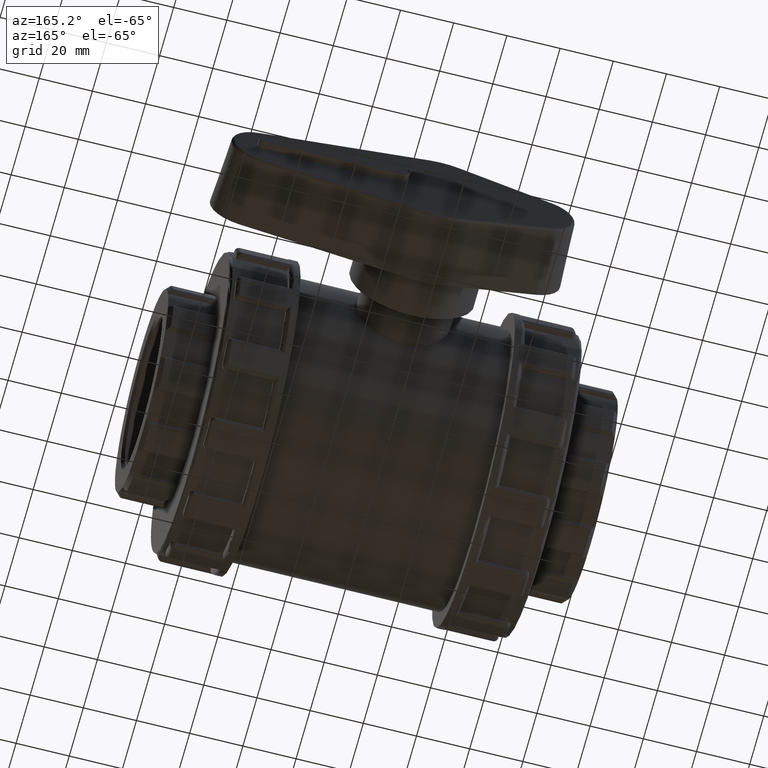
[diagram: clean part render]
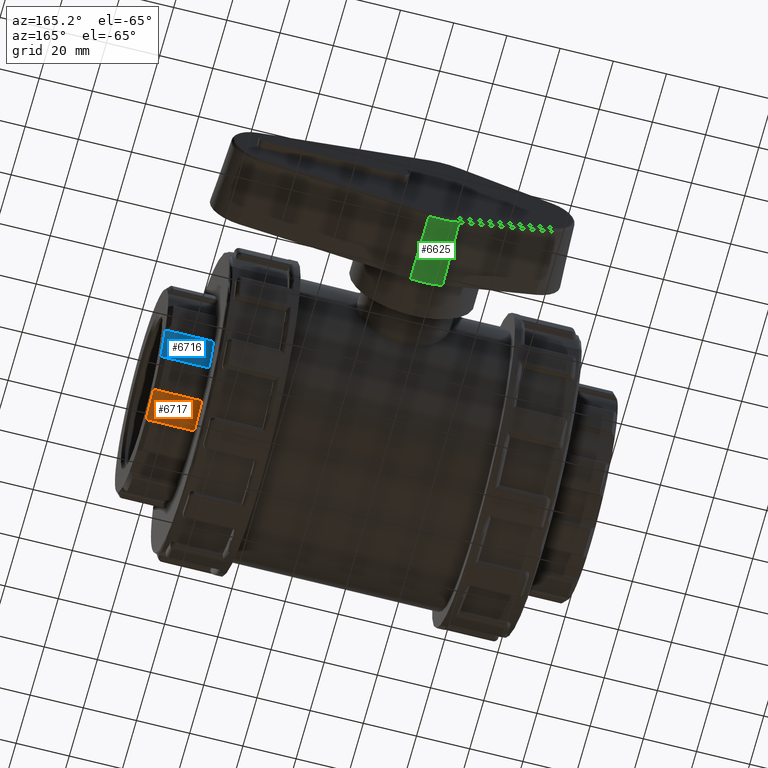
[diagram: same view with three faces highlighted in distinct colors, each labeled with its STEP entity id]
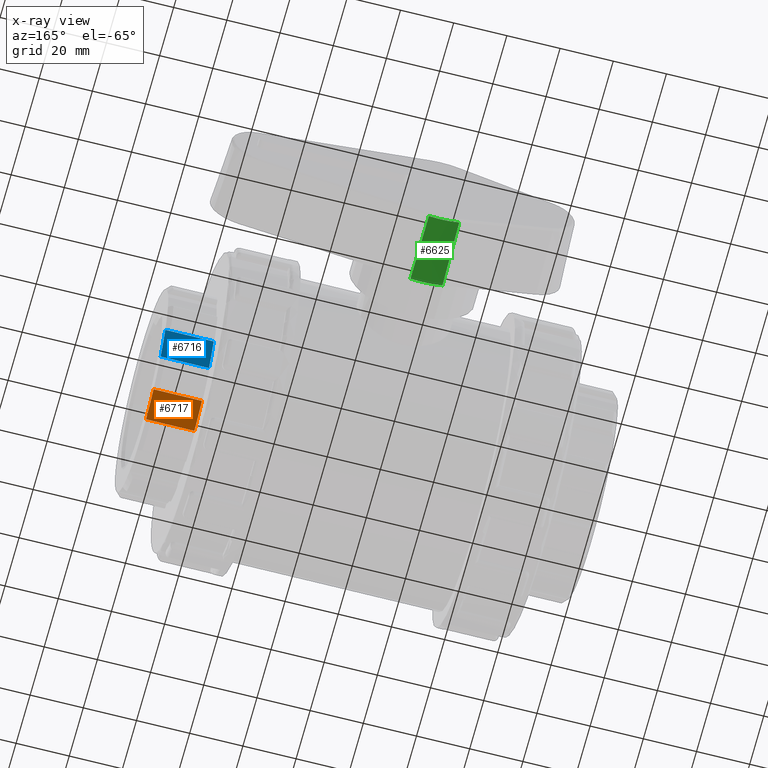
[diagram: x-ray of the same camera — body ghosted, the three highlighted faces saturated]
A machine part, auxiliary view with three faces highlighted in distinct colors.
The next image is the same camera in x-ray (body ghosted, the three faces saturated) — at least one of them is partly hidden behind the body in this view.
Their STEP definitions:

[orange] entity #6717 — the highlighted cylindrical surface (partial cylindrical patch) has radius 37.9595 mm, axis along (-1, 0, 0).
#520=FACE_OUTER_BOUND('',#958,.T.);
#958=EDGE_LOOP('',(#4730,#4731,#4732,#4733));
#1357=LINE('',#10614,#1753);
#1359=LINE('',#10634,#1755);
#1753=VECTOR('',#8215,18.2);
#1755=VECTOR('',#8221,18.2);
#2238=CIRCLE('',#7286,37.95952);
#2239=CIRCLE('',#7287,37.95952);
#2691=VERTEX_POINT('',#10596);
#2694=VERTEX_POINT('',#10612);
#2695=VERTEX_POINT('',#10616);
#2698=VERTEX_POINT('',#10621);
#3365=EDGE_CURVE('',#2691,#2694,#1357,.T.);
#3369=EDGE_CURVE('',#2698,#2695,#1359,.T.);
#3542=EDGE_CURVE('',#2698,#2691,#2238,.T.);
#3543=EDGE_CURVE('',#2694,#2695,#2239,.T.);
#4730=ORIENTED_EDGE('',*,*,#3542,.T.);
#4731=ORIENTED_EDGE('',*,*,#3365,.T.);
#4732=ORIENTED_EDGE('',*,*,#3543,.T.);
#4733=ORIENTED_EDGE('',*,*,#3369,.F.);
#6497=CYLINDRICAL_SURFACE('',#7285,37.95952);
#6717=ADVANCED_FACE('',(#520),#6497,.T.);
#7285=AXIS2_PLACEMENT_3D('',#11290,#8575,#8576);
#7286=AXIS2_PLACEMENT_3D('',#11291,#8577,#8578);
#7287=AXIS2_PLACEMENT_3D('',#11292,#8579,#8580);
#8215=DIRECTION('',(-1.,0.,0.));
#8221=DIRECTION('',(-1.,0.,0.));
#8575=DIRECTION('center_axis',(-1.,0.,0.));
#8576=DIRECTION('ref_axis',(0.,0.951056516295154,0.309016994374947));
#8577=DIRECTION('center_axis',(-1.,0.,0.));
#8578=DIRECTION('ref_axis',(0.,-1.,0.));
#8579=DIRECTION('center_axis',(1.,0.,0.));
#8580=DIRECTION('ref_axis',(0.,0.951056516295154,0.309016994374947));
#10596=CARTESIAN_POINT('',(84.5,6.21044089471596,-37.4480384335901));
#10612=CARTESIAN_POINT('',(66.3,6.21044089471596,-37.4480384335901));
#10614=CARTESIAN_POINT('',(84.5,6.21044089471596,-37.4480384335901));
#10616=CARTESIAN_POINT('',(66.3,16.9870524921596,-33.9465050669287));
#10621=CARTESIAN_POINT('',(84.5,16.9870524921596,-33.9465050669287));
#10634=CARTESIAN_POINT('',(84.5,16.9870524921596,-33.9465050669287));
#11290=CARTESIAN_POINT('Origin',(84.5,0.,0.));
#11291=CARTESIAN_POINT('Origin',(84.5,0.,0.));
#11292=CARTESIAN_POINT('Origin',(66.3,0.,0.));

[blue] entity #6716 — the highlighted cylindrical surface (partial cylindrical patch) has radius 37.9595 mm, axis along (-1, 0, 0).
#519=FACE_OUTER_BOUND('',#957,.T.);
#957=EDGE_LOOP('',(#4726,#4727,#4728,#4729));
#1348=LINE('',#10523,#1744);
#1350=LINE('',#10543,#1746);
#1744=VECTOR('',#8174,18.2);
#1746=VECTOR('',#8180,18.2);
#2236=CIRCLE('',#7283,37.95952);
#2237=CIRCLE('',#7284,37.95952);
#2673=VERTEX_POINT('',#10505);
#2676=VERTEX_POINT('',#10521);
#2677=VERTEX_POINT('',#10525);
#2680=VERTEX_POINT('',#10530);
#3343=EDGE_CURVE('',#2673,#2676,#1348,.T.);
#3347=EDGE_CURVE('',#2680,#2677,#1350,.T.);
#3540=EDGE_CURVE('',#2680,#2673,#2236,.T.);
#3541=EDGE_CURVE('',#2676,#2677,#2237,.T.);
#4726=ORIENTED_EDGE('',*,*,#3540,.T.);
#4727=ORIENTED_EDGE('',*,*,#3343,.T.);
#4728=ORIENTED_EDGE('',*,*,#3541,.T.);
#4729=ORIENTED_EDGE('',*,*,#3347,.F.);
#6496=CYLINDRICAL_SURFACE('',#7282,37.95952);
#6716=ADVANCED_FACE('',(#519),#6496,.T.);
#7282=AXIS2_PLACEMENT_3D('',#11287,#8569,#8570);
#7283=AXIS2_PLACEMENT_3D('',#11288,#8571,#8572);
#7284=AXIS2_PLACEMENT_3D('',#11289,#8573,#8574);
#8174=DIRECTION('',(-1.,0.,0.));
#8180=DIRECTION('',(-1.,0.,0.));
#8569=DIRECTION('center_axis',(-1.,0.,0.));
#8570=DIRECTION('ref_axis',(0.,0.587785252292473,0.809016994374947));
#8571=DIRECTION('center_axis',(-1.,0.,0.));
#8572=DIRECTION('ref_axis',(0.,-1.,0.));
#8573=DIRECTION('center_axis',(1.,0.,0.));
#8574=DIRECTION('ref_axis',(0.,0.587785252292473,0.809016994374947));
#10505=CARTESIAN_POINT('',(84.5,27.0357569449323,-26.6456939306325));
#10521=CARTESIAN_POINT('',(66.3,27.0357569449323,-26.6456939306325));
#10523=CARTESIAN_POINT('',(84.5,27.0357569449323,-26.6456939306325));
#10525=CARTESIAN_POINT('',(66.3,33.6960691957088,-17.478560563971));
#10530=CARTESIAN_POINT('',(84.5,33.6960691957088,-17.478560563971));
#10543=CARTESIAN_POINT('',(84.5,33.6960691957088,-17.478560563971));
#11287=CARTESIAN_POINT('Origin',(84.5,0.,0.));
#11288=CARTESIAN_POINT('Origin',(84.5,0.,0.));
#11289=CARTESIAN_POINT('Origin',(66.3,0.,0.));

[green] entity #6625 — the highlighted conical surface has half-angle 3 deg.
#340=CONICAL_SURFACE('',#7077,23.6,3.);
#428=FACE_OUTER_BOUND('',#862,.T.);
#862=EDGE_LOOP('',(#4353,#4354,#4355,#4356));
#1322=LINE('',#10361,#1718);
#1323=LINE('',#10364,#1719);
#1718=VECTOR('',#8066,25.4610764391089);
#1719=VECTOR('',#8069,25.4610764391089);
#2114=CIRCLE('',#7065,23.6562763685851);
#2122=CIRCLE('',#7078,24.9888061510006);
#2631=VERTEX_POINT('',#10327);
#2633=VERTEX_POINT('',#10333);
#2641=VERTEX_POINT('',#10360);
#2642=VERTEX_POINT('',#10362);
#3281=EDGE_CURVE('',#2631,#2633,#2114,.T.);
#3293=EDGE_CURVE('',#2631,#2641,#1322,.T.);
#3294=EDGE_CURVE('',#2641,#2642,#2122,.T.);
#3295=EDGE_CURVE('',#2633,#2642,#1323,.T.);
#4353=ORIENTED_EDGE('',*,*,#3281,.F.);
#4354=ORIENTED_EDGE('',*,*,#3293,.T.);
#4355=ORIENTED_EDGE('',*,*,#3294,.T.);
#4356=ORIENTED_EDGE('',*,*,#3295,.F.);
#6625=ADVANCED_FACE('',(#428),#340,.T.);
#7065=AXIS2_PLACEMENT_3D('',#10337,#8036,#8037);
#7077=AXIS2_PLACEMENT_3D('',#10359,#8064,#8065);
#7078=AXIS2_PLACEMENT_3D('',#10363,#8067,#8068);
#8036=DIRECTION('center_axis',(0.,1.,0.));
#8037=DIRECTION('ref_axis',(-0.0659500276682269,0.,-0.997822927102079));
#8064=DIRECTION('center_axis',(2.93266459334947E-16,-1.,0.));
#8065=DIRECTION('ref_axis',(1.,2.97139982259774E-16,0.));
#8066=DIRECTION('',(0.00925883483758258,-0.998629534754574,-0.051510448389756));
#8067=DIRECTION('center_axis',(-2.97139982259774E-16,1.,0.));
#8068=DIRECTION('ref_axis',(1.,2.97139982259774E-16,0.));
#8069=DIRECTION('',(-0.0159577334280807,-0.998629534754574,-0.0498437865706612));
#10327=CARTESIAN_POINT('',(4.18506838304804,104.926182918738,-23.2831401287733));
#10333=CARTESIAN_POINT('',(-7.21302483589936,104.926182918738,-22.5297954793997));
#10337=CARTESIAN_POINT('Origin',(-1.06858966120171E-14,104.926182918738,
0.));
#10359=CARTESIAN_POINT('Origin',(-1.22124532708767E-14,106.,0.));
#10360=CARTESIAN_POINT('',(4.42080828458481,79.5,-24.5946515926376));
#10361=CARTESIAN_POINT('',(4.1751124437781,106.,-23.2277514211301));
#10362=CARTESIAN_POINT('',(-7.61932590650664,79.5,-23.7988719392899));
#10363=CARTESIAN_POINT('Origin',(-4.44089209850063E-15,79.5,0.));
#10364=CARTESIAN_POINT('',(-7.19586563307495,106.,-22.4761989177603));